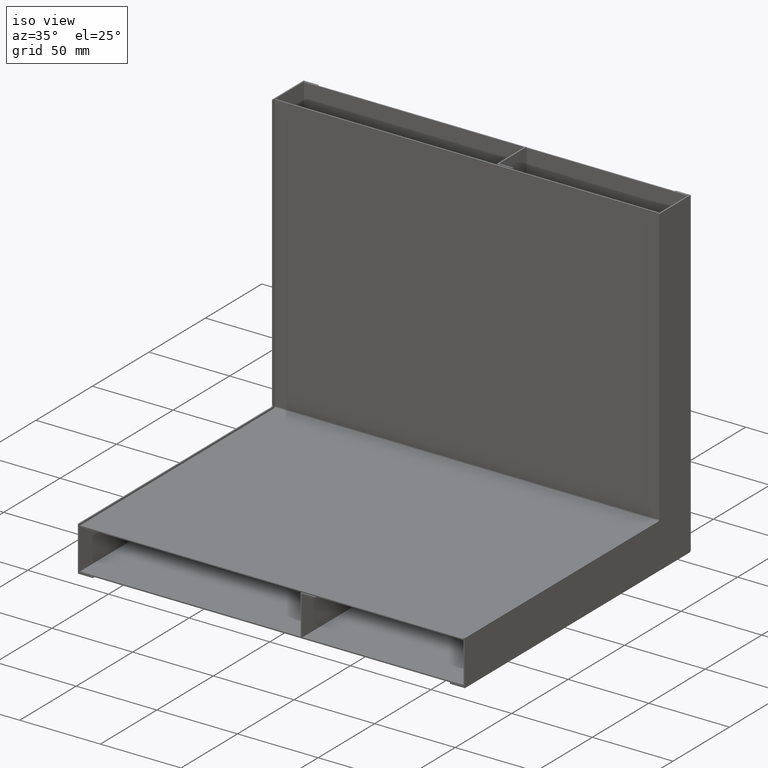
[diagram: clean part render]
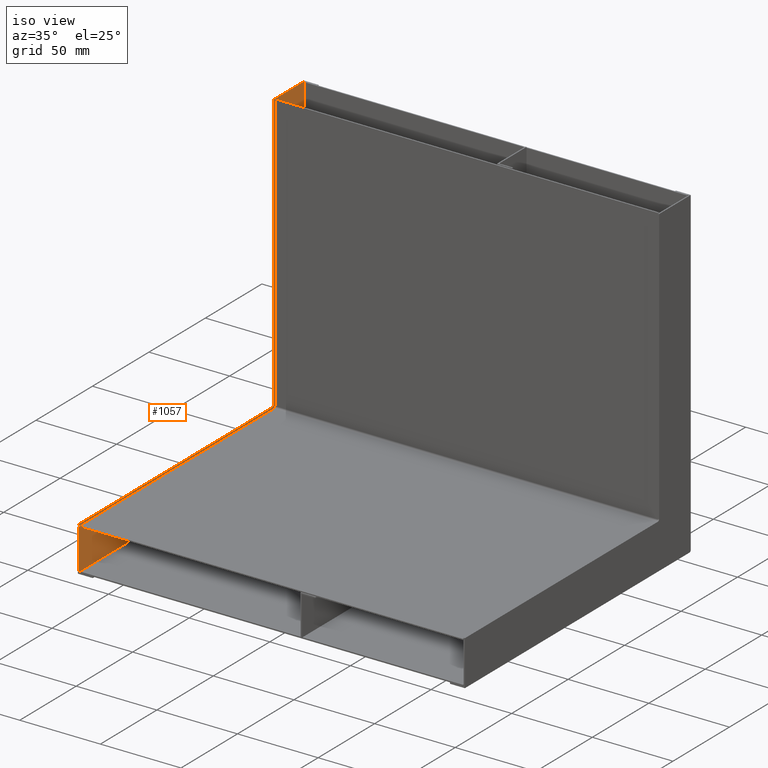
[diagram: same view with one face highlighted and labeled with its STEP entity id]
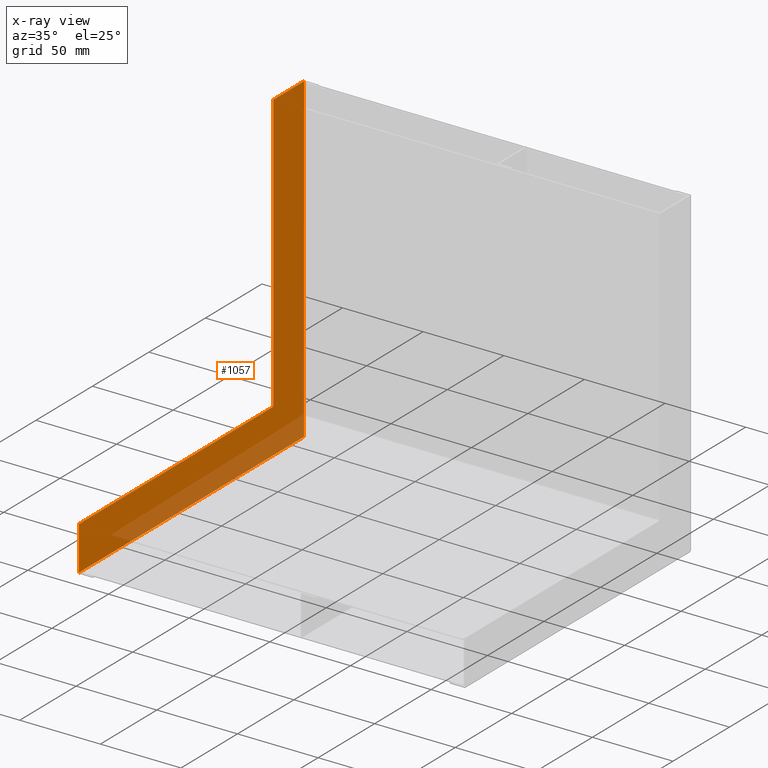
[diagram: x-ray of the same camera — body ghosted, the highlighted face saturated]
A machine part, iso view. The second image highlights one B-rep face of the part: STEP entity #1057.
The next image is the same camera in x-ray: the body ghosted, the highlighted face saturated — about 20% of this face is hidden behind the body in this view.
In plain terms, the highlighted planar face has unit normal (-1, 0, 0).
Its self-contained STEP definition (entity closure, byte-faithful):
#728=DIRECTION('',(0.E0,0.E0,1.E0));
#729=VECTOR('',#728,2.725E1);
#730=CARTESIAN_POINT('',(1.86E2,7.5E-1,-1.9925E2));
#731=LINE('',#730,#729);
#735=DIRECTION('',(-1.E0,0.E0,0.E0));
#736=VECTOR('',#735,2.725E1);
#737=CARTESIAN_POINT('',(1.4E1,7.5E-1,0.E0));
#738=LINE('',#737,#736);
#763=DIRECTION('',(-1.E0,0.E0,0.E0));
#764=VECTOR('',#763,1.99E2);
#765=CARTESIAN_POINT('',(1.86E2,7.5E-1,-1.9925E2));
#766=LINE('',#765,#764);
#777=CARTESIAN_POINT('',(-1.3E1,7.5E-1,-1.99E2));
#778=DIRECTION('',(0.E0,1.E0,0.E0));
#779=DIRECTION('',(-4.973799150320E-14,0.E0,-1.E0));
#780=AXIS2_PLACEMENT_3D('',#777,#778,#779);
#792=DIRECTION('',(0.E0,0.E0,1.E0));
#793=VECTOR('',#792,1.99E2);
#794=CARTESIAN_POINT('',(-1.325E1,7.5E-1,-1.99E2));
#795=LINE('',#794,#793);
#820=DIRECTION('',(0.E0,0.E0,1.E0));
#821=VECTOR('',#820,1.71E2);
#822=CARTESIAN_POINT('',(1.4E1,7.5E-1,-1.71E2));
#823=LINE('',#822,#821);
#841=CARTESIAN_POINT('',(1.5E1,7.5E-1,-1.71E2));
#842=DIRECTION('',(0.E0,-1.E0,0.E0));
#843=DIRECTION('',(-1.E0,0.E0,5.684341886081E-14));
#844=AXIS2_PLACEMENT_3D('',#841,#842,#843);
#864=DIRECTION('',(-1.E0,0.E0,0.E0));
#865=VECTOR('',#864,1.71E2);
#866=CARTESIAN_POINT('',(1.86E2,7.5E-1,-1.72E2));
#867=LINE('',#866,#865);
#1002=CARTESIAN_POINT('',(-1.325E1,7.5E-1,-1.99E2));
#1003=CARTESIAN_POINT('',(-1.325E1,7.5E-1,0.E0));
#1004=VERTEX_POINT('',#1002);
#1005=VERTEX_POINT('',#1003);
#1006=CARTESIAN_POINT('',(-1.3E1,7.5E-1,-1.9925E2));
#1007=VERTEX_POINT('',#1006);
#1008=CARTESIAN_POINT('',(1.86E2,7.5E-1,-1.9925E2));
#1009=VERTEX_POINT('',#1008);
#1026=CARTESIAN_POINT('',(1.4E1,7.5E-1,-1.71E2));
#1027=CARTESIAN_POINT('',(1.4E1,7.5E-1,0.E0));
#1028=VERTEX_POINT('',#1026);
#1029=VERTEX_POINT('',#1027);
#1030=CARTESIAN_POINT('',(1.5E1,7.5E-1,-1.72E2));
#1031=VERTEX_POINT('',#1030);
#1032=CARTESIAN_POINT('',(1.86E2,7.5E-1,-1.72E2));
#1033=VERTEX_POINT('',#1032);
#1034=CARTESIAN_POINT('',(-1.3E1,7.5E-1,-1.99E2));
#1035=DIRECTION('',(0.E0,-1.E0,0.E0));
#1036=DIRECTION('',(0.E0,0.E0,-1.E0));
#1037=AXIS2_PLACEMENT_3D('',#1034,#1035,#1036);
#1038=PLANE('',#1037);
#1040=ORIENTED_EDGE('',*,*,#1039,.T.);
#1042=ORIENTED_EDGE('',*,*,#1041,.T.);
#1044=ORIENTED_EDGE('',*,*,#1043,.F.);
#1046=ORIENTED_EDGE('',*,*,#1045,.T.);
#1048=ORIENTED_EDGE('',*,*,#1047,.T.);
#1050=ORIENTED_EDGE('',*,*,#1049,.F.);
#1052=ORIENTED_EDGE('',*,*,#1051,.F.);
#1054=ORIENTED_EDGE('',*,*,#1053,.F.);
#1055=EDGE_LOOP('',(#1040,#1042,#1044,#1046,#1048,#1050,#1052,#1054));
#1056=FACE_OUTER_BOUND('',#1055,.F.);
#781=CIRCLE('',#780,2.5E-1);
#845=CIRCLE('',#844,1.E0);
#1039=EDGE_CURVE('',#1009,#1033,#731,.T.);
#1041=EDGE_CURVE('',#1033,#1031,#867,.T.);
#1043=EDGE_CURVE('',#1028,#1031,#845,.T.);
#1045=EDGE_CURVE('',#1028,#1029,#823,.T.);
#1047=EDGE_CURVE('',#1029,#1005,#738,.T.);
#1049=EDGE_CURVE('',#1004,#1005,#795,.T.);
#1051=EDGE_CURVE('',#1007,#1004,#781,.T.);
#1053=EDGE_CURVE('',#1009,#1007,#766,.T.);
#1057=ADVANCED_FACE('',(#1056),#1038,.F.);